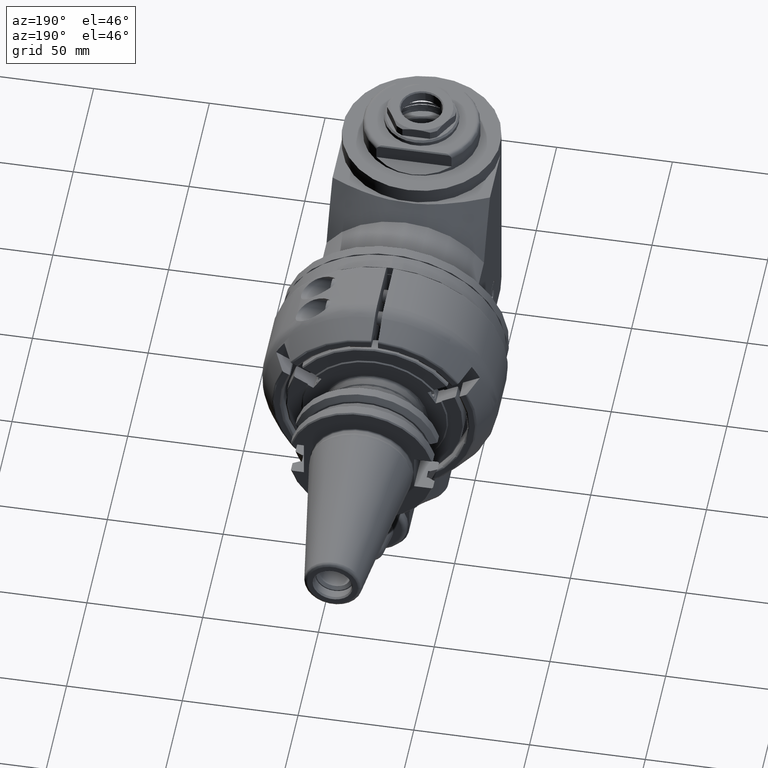
[diagram: clean part render]
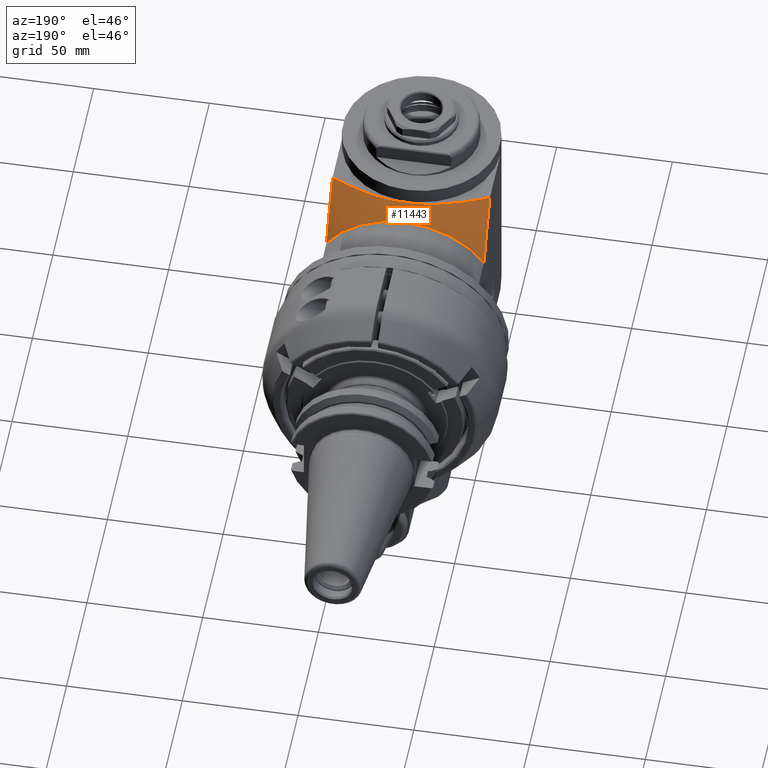
[diagram: same view with one face highlighted and labeled with its STEP entity id]
A machine part, auxiliary view. The second image highlights one B-rep face of the part: STEP entity #11443.
In plain terms, the highlighted conical surface has half-angle 50 deg.
Its self-contained STEP definition (entity closure, byte-faithful):
#288=CONICAL_SURFACE('',#12284,49.25431002455,0.872664625997165);
#455=(
BOUNDED_CURVE()
B_SPLINE_CURVE(2,(#17483,#17484,#17485),.UNSPECIFIED.,.F.,.F.)
B_SPLINE_CURVE_WITH_KNOTS((3,3),(2.27566506276832,5.3346686842706),
 .UNSPECIFIED.)
CURVE()
GEOMETRIC_REPRESENTATION_ITEM()
RATIONAL_B_SPLINE_CURVE((1.34464906192832,1.54487999002353,1.66066180722595))
REPRESENTATION_ITEM('')
);
#456=(
BOUNDED_CURVE()
B_SPLINE_CURVE(2,(#17505,#17506,#17507),.UNSPECIFIED.,.F.,.F.)
B_SPLINE_CURVE_WITH_KNOTS((3,3),(-13.3307413568232,-3.55176037274898),
 .UNSPECIFIED.)
CURVE()
GEOMETRIC_REPRESENTATION_ITEM()
RATIONAL_B_SPLINE_CURVE((1.30198172848939,1.60693964679166,1.30198172849435))
REPRESENTATION_ITEM('')
);
#457=(
BOUNDED_CURVE()
B_SPLINE_CURVE(2,(#17511,#17512,#17513),.UNSPECIFIED.,.F.,.F.)
B_SPLINE_CURVE_WITH_KNOTS((3,3),(13.7226077491588,16.7816113706611),
 .UNSPECIFIED.)
CURVE()
GEOMETRIC_REPRESENTATION_ITEM()
RATIONAL_B_SPLINE_CURVE((1.66066180722595,1.54487999002353,1.34464906192832))
REPRESENTATION_ITEM('')
);
#2471=FACE_OUTER_BOUND('',#3216,.T.);
#3216=EDGE_LOOP('',(#7758,#7759,#7760,#7761));
#4082=CIRCLE('',#12282,40.5);
#4790=VERTEX_POINT('',#17480);
#4791=VERTEX_POINT('',#17482);
#4800=VERTEX_POINT('',#17504);
#4801=VERTEX_POINT('',#17510);
#5935=EDGE_CURVE('',#4791,#4790,#455,.T.);
#5945=EDGE_CURVE('',#4800,#4791,#456,.F.);
#5947=EDGE_CURVE('',#4801,#4800,#457,.T.);
#5983=EDGE_CURVE('',#4790,#4801,#4082,.T.);
#7758=ORIENTED_EDGE('',*,*,#5983,.T.);
#7759=ORIENTED_EDGE('',*,*,#5947,.T.);
#7760=ORIENTED_EDGE('',*,*,#5945,.T.);
#7761=ORIENTED_EDGE('',*,*,#5935,.T.);
#11443=ADVANCED_FACE('',(#2471),#288,.T.);
#12282=AXIS2_PLACEMENT_3D('',#17624,#13833,#13834);
#12284=AXIS2_PLACEMENT_3D('',#17642,#13837,#13838);
#13833=DIRECTION('center_axis',(0.,-1.,0.));
#13834=DIRECTION('ref_axis',(1.,0.,0.));
#13837=DIRECTION('center_axis',(0.,-1.,0.));
#13838=DIRECTION('ref_axis',(1.,0.,1.20980294963545E-15));
#17480=CARTESIAN_POINT('',(11.16572287258,17.29990036882,-34.));
#17482=CARTESIAN_POINT('',(36.16004178792,2.608423743201,-34.));
#17483=CARTESIAN_POINT('Ctrl Pts',(36.1600417879146,2.60842374320832,-34.));
#17484=CARTESIAN_POINT('Ctrl Pts',(21.441675531001,12.614837571033,-34.));
#17485=CARTESIAN_POINT('Ctrl Pts',(11.165722872577,17.2999003688253,-34.));
#17504=CARTESIAN_POINT('',(36.16004178792,2.6084237432,34.));
#17505=CARTESIAN_POINT('Ctrl Pts',(36.16004178792,2.60842374286809,-34.0000000006843));
#17506=CARTESIAN_POINT('Ctrl Pts',(36.16004178792,19.330062231182,-2.24020801908864E-10));
#17507=CARTESIAN_POINT('Ctrl Pts',(36.16004178792,2.60842374320375,34.0000000000018));
#17510=CARTESIAN_POINT('',(11.16572287258,17.29990036882,34.));
#17511=CARTESIAN_POINT('Ctrl Pts',(11.1657228725769,17.2999003688253,34.));
#17512=CARTESIAN_POINT('Ctrl Pts',(21.441675531001,12.614837571033,34.));
#17513=CARTESIAN_POINT('Ctrl Pts',(36.160041787915,2.60842374320804,34.));
#17624=CARTESIAN_POINT('Origin',(-10.83995821208,17.29990036882,0.));
#17642=CARTESIAN_POINT('Origin',(-10.83995821208,9.95416205601,0.));